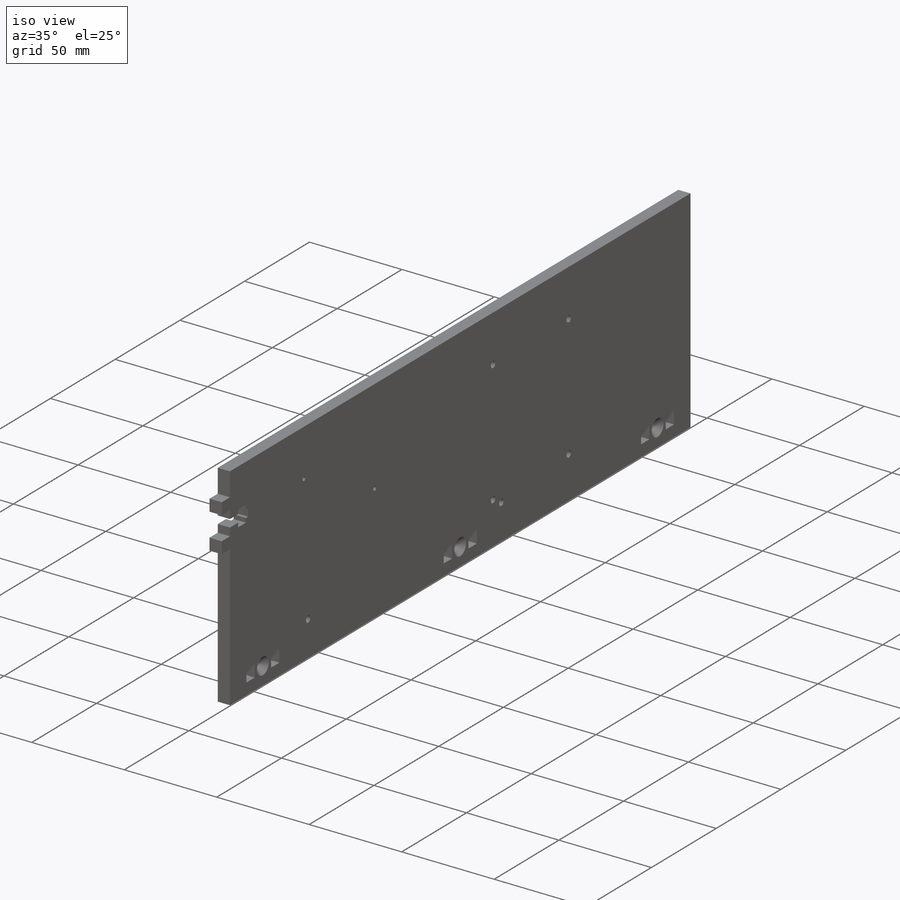
[diagram: iso view]
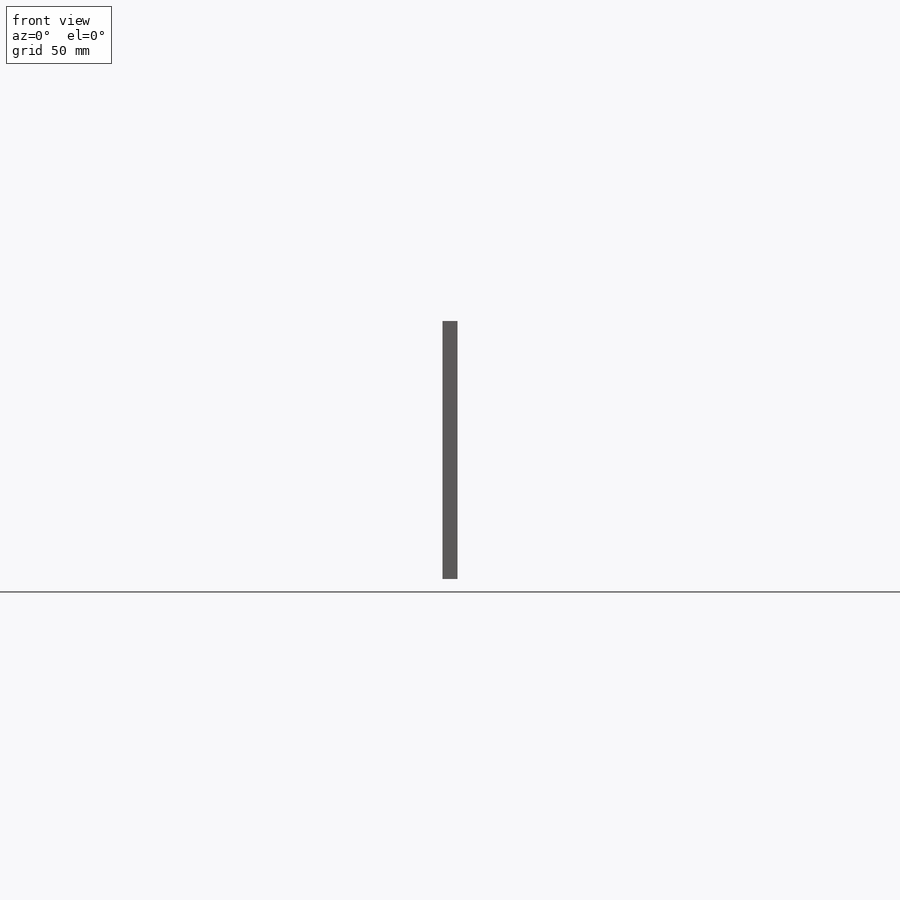
[diagram: front view]
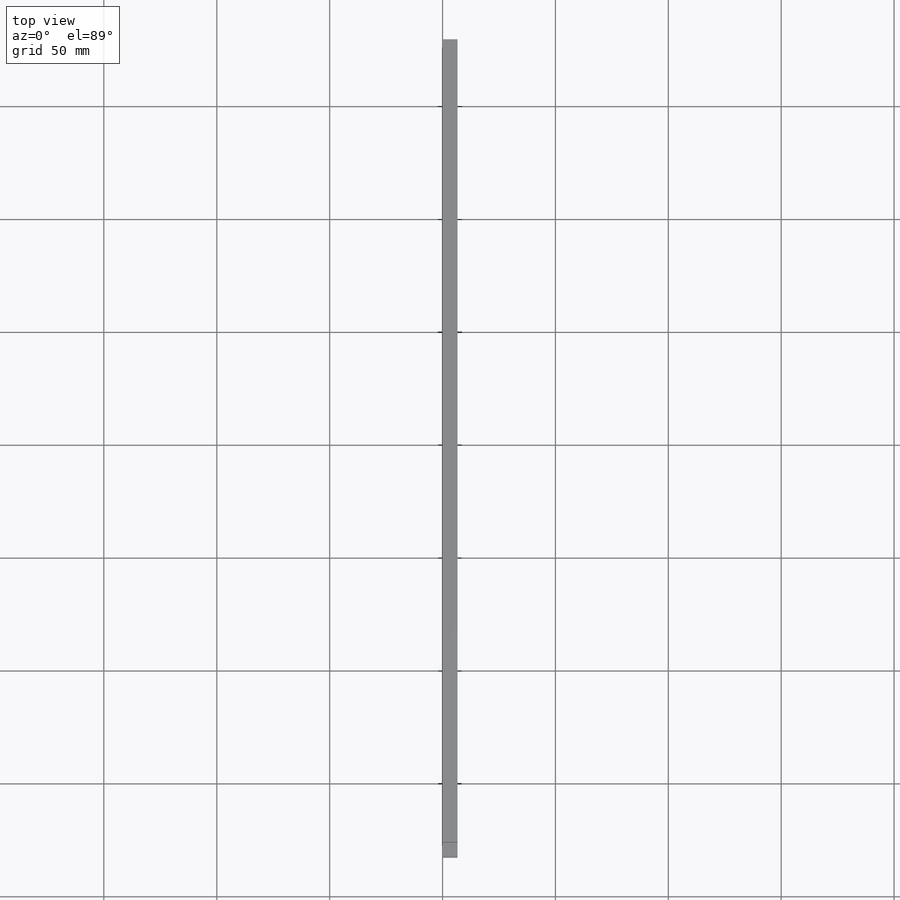
[diagram: top view]
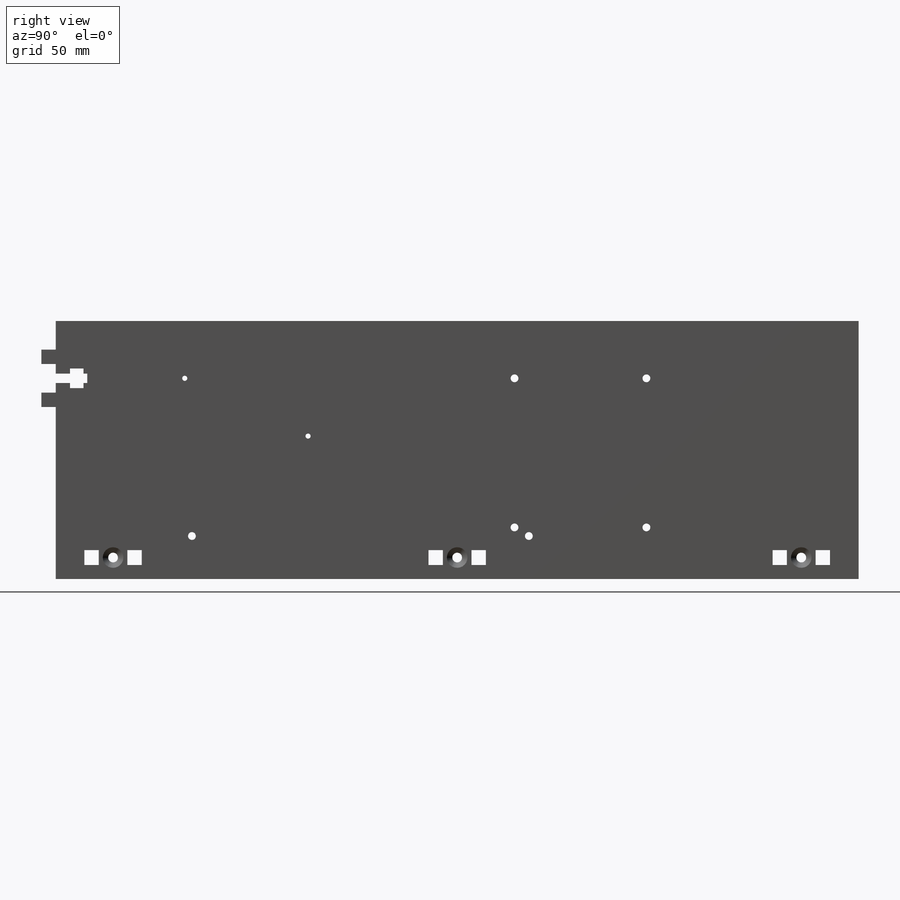
[diagram: right view]
SOLIDWORKS PART (.sldprt)
format: sldprt  version: not decoded by parser v0  size: 1,217,536 bytes
history: native  units: mm
features: sketch x13, hole x4, extrude x2, material x1, cut_extrude x1 (+12 scaffold rows collapsed)
feature tree (33):
  scaffold x12  (default folders/planes/origin — collapsed)
  material  "Acrylic (Blue)"
  sketch  "Sketch1"  dims[c1.D1=4.3053mm c1.D2=6.35mm c1.D3=6.604mm c1.D4=12.7mm c2.D1=114.3mm c2.D2=355.6mm c2.D3=12.7mm c2.D4=12.7mm c2.D5=9.525mm]
  extrude  "Boss-Extrude1"  Depth=6.604mm
  sketch  "Sketch4"
  sketch  "NUT_HOLE"  dims[c1.D1=6.35mm c1.D2=4.1656mm c1.D3=25.4mm c1.D4=6.35mm c1.D5=8.7376mm c1.D6=5.9436mm c1.D7=6.35mm c1.D8=20.32mm c2.D1=12.7mm]
  sketch  "Sketch5"
  cut_extrude  "Cut-Extrude1"  [1 undecoded]
  sketch  "Sketch6"
  extrude  "Boss-Extrude2"  [1 undecoded]
  hole  "CSK for #8 Flat Head Socket Cap Screw2"  Diameter=4.3053mm Depth=6.604mm
  sketch  "Sketch8"
  sketch  "Sketch7"  dims[hole-wizard template sketch: 59 standard entries collapsed; hole parameters above]
  hole  "#4-40 Tapped Hole2"  Diameter=2.2606mm Depth=7.5946mm
  sketch  "Sketch10"  dims[D1=25.4mm D2=25.6032mm D3=57.15mm D4=54.61mm]
  sketch  "Sketch11"  dims[hole-wizard template sketch: 50 standard entries collapsed; hole parameters above]
  hole  "#8-32 Tapped Hole1"  Diameter=3.4544mm Depth=10.7188mm
  sketch  "Sketch13"  dims[D1=58.42mm D2=66.04mm D3=203.2mm D4=25.4mm]
  sketch  "Sketch12"  dims[hole-wizard template sketch: 50 standard entries collapsed; hole parameters above]
  hole  "#8-32 Tapped Hole2"  Diameter=3.4544mm Depth=10.7188mm
  sketch  "Sketch15"  dims[D1=3.175mm D2=60.325mm D3=209.55mm D4=22.225mm]
  sketch  "Sketch14"  dims[hole-wizard template sketch: 50 standard entries collapsed; hole parameters kept: c15.D1=0.0508mm]
decode coverage: 14 of 20 modeling features carry decoded parameters
note: ~ marks probable driven/reference dimensions
note: 2 parameter values undecoded
summary: Diameter pulled from absorbed wizard sketch
note: suppression state not decoded; provenance and decode notes live in map.json
